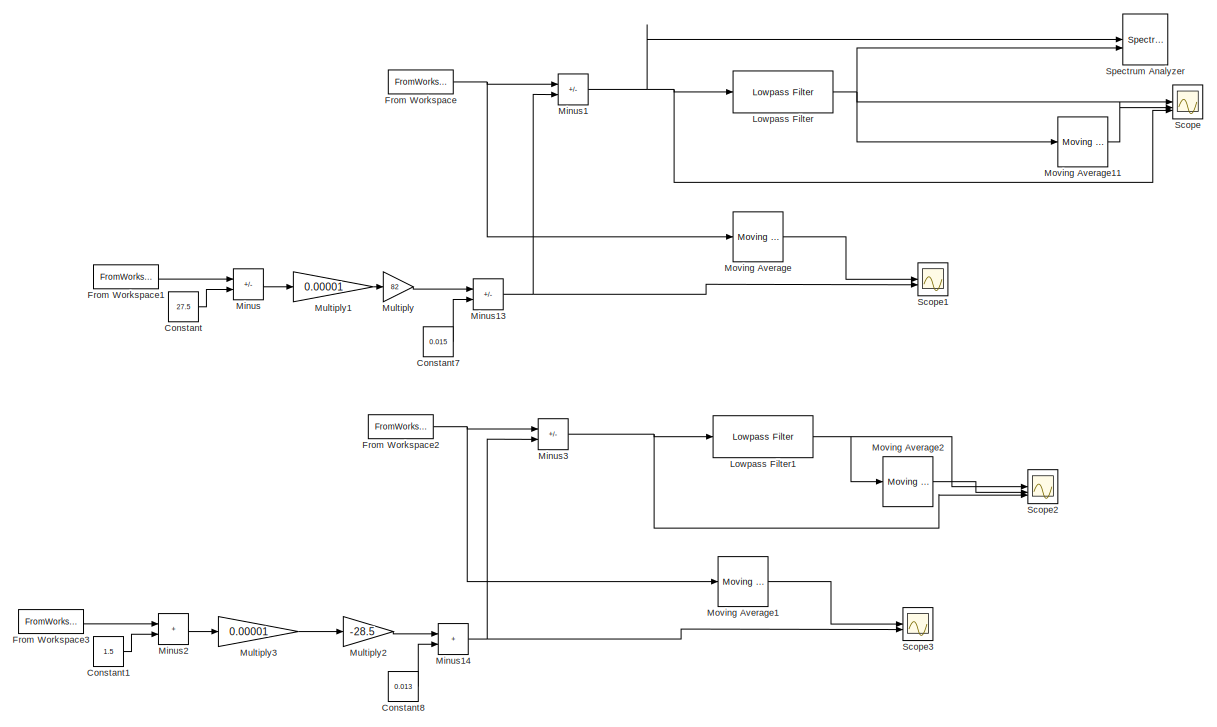
[diagram: root canvas - part 1/3, top left region]
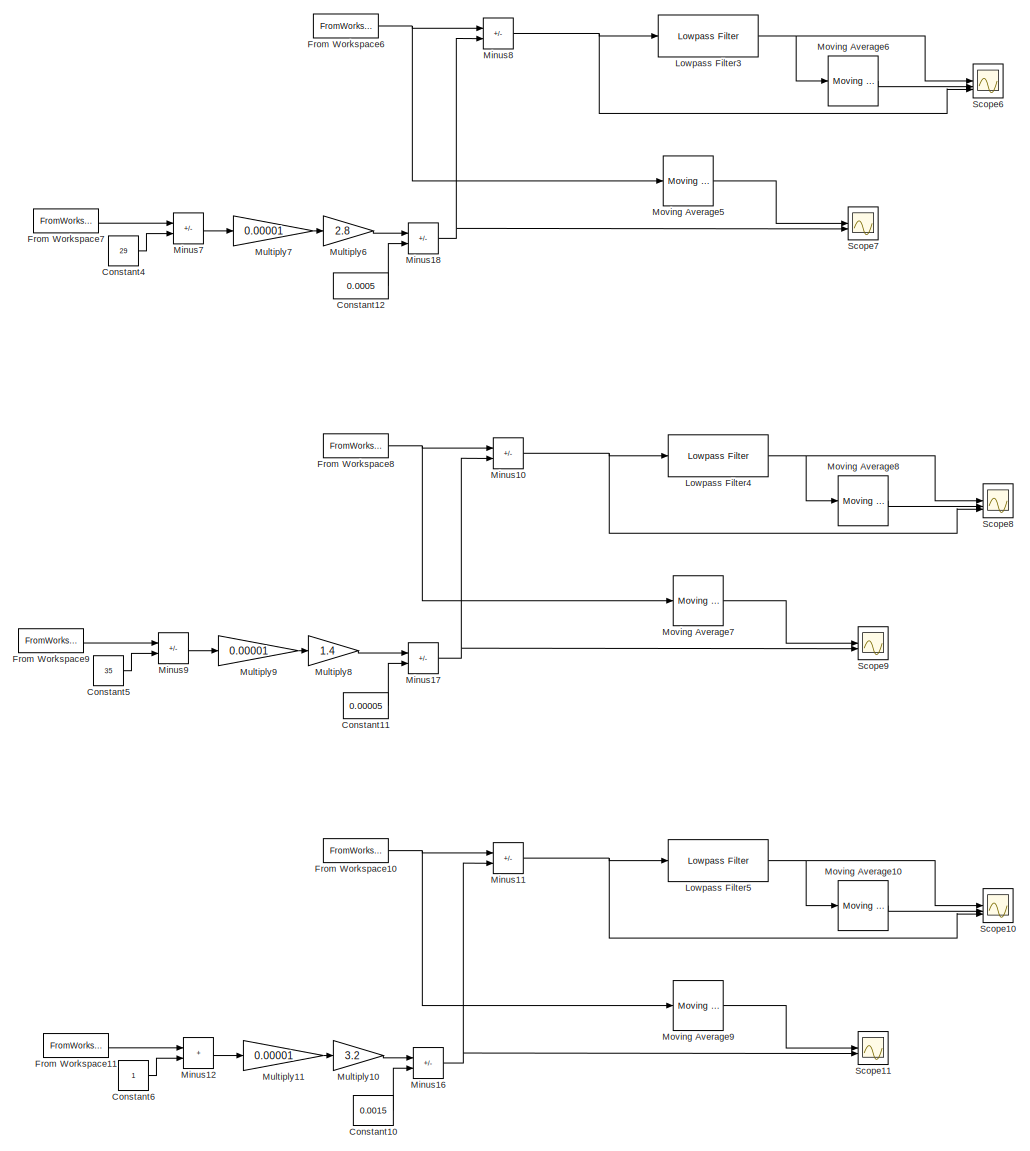
[diagram: root canvas - part 2/3, right side, full height]
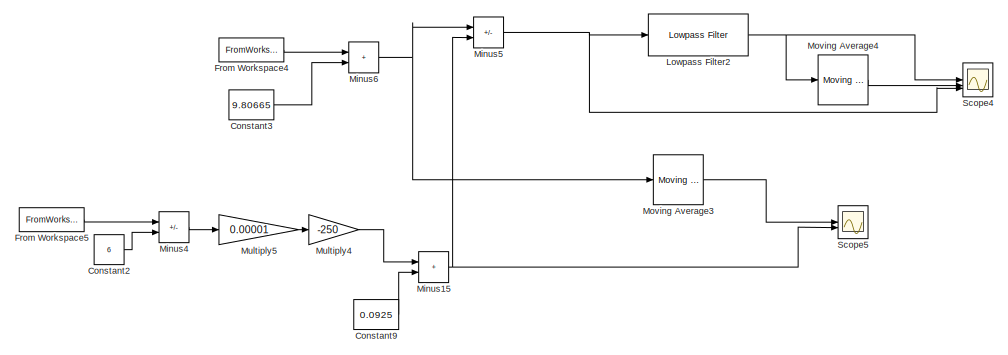
[diagram: root canvas - part 3/3, bottom left region]
MODEL slx_0a8148d8cee3
KIND model
CONFIG AbsTol = auto
CONFIG EnableMultiTasking = off
CONFIG FixedStep = auto
CONFIG MaxStep = auto
CONFIG MinStep = auto
CONFIG RelTol = 1e-3
CONFIG SampleTimeConstraint = Unconstrained
CONFIG SolverName = VariableStepAuto
CONFIG StartTime = 0.0
CONFIG StopTime = 60
BLOCK [Constant] Constant
  Value = 27.5
BLOCK [Constant] Constant1
  Commented = on
  Value = 1.5
BLOCK [Constant] Constant10
  Commented = on
  Value = 0.0015
BLOCK [Constant] Constant11
  Commented = on
  Value = 0.00005
BLOCK [Constant] Constant12
  Commented = on
  Value = 0.0005
BLOCK [Constant] Constant2
  Commented = on
  Value = 6
BLOCK [Constant] Constant3
  Commented = on
  Value = 9.80665
BLOCK [Constant] Constant4
  Commented = on
  Value = 29
BLOCK [Constant] Constant5
  Commented = on
  Value = 35
BLOCK [Constant] Constant6
  Commented = on
BLOCK [Constant] Constant7
  Value = 0.015
BLOCK [Constant] Constant8
  Commented = on
  Value = 0.013
BLOCK [Constant] Constant9
  Commented = on
  Value = 0.0925
BLOCK [FromWorkspace] From Workspace
  SampleTime = 0.01
  VariableName = [Time data.Accelerometer_X]
BLOCK [FromWorkspace] From Workspace1
  SampleTime = 0.01
  VariableName = [Time data.Temperature]
BLOCK [FromWorkspace] From Workspace10
  Commented = on
  SampleTime = 0.01
  VariableName = [Time data.Gyroscope_Z]
BLOCK [FromWorkspace] From Workspace11
  Commented = on
  SampleTime = 0.01
  VariableName = [Time data.Temperature]
BLOCK [FromWorkspace] From Workspace2
  Commented = on
  SampleTime = 0.01
  VariableName = [Time data.Accelerometer_Y]
BLOCK [FromWorkspace] From Workspace3
  Commented = on
  SampleTime = 0.01
  VariableName = [Time data.Temperature]
BLOCK [FromWorkspace] From Workspace4
  Commented = on
  SampleTime = 0.01
  VariableName = [Time data.Accelerometer_Z]
BLOCK [FromWorkspace] From Workspace5
  Commented = on
  SampleTime = 0.01
  VariableName = [Time data.Temperature]
BLOCK [FromWorkspace] From Workspace6
  Commented = on
  SampleTime = 0.01
  VariableName = [Time data.Gyroscope_X]
BLOCK [FromWorkspace] From Workspace7
  Commented = on
  SampleTime = 0.01
  VariableName = [Time data.Temperature]
BLOCK [FromWorkspace] From Workspace8
  Commented = on
  SampleTime = 0.01
  VariableName = [Time data.Gyroscope_Y]
BLOCK [FromWorkspace] From Workspace9
  Commented = on
  SampleTime = 0.01
  VariableName = [Time data.Temperature]
BLOCK [Reference] Lowpass Filter  REF=dspfdesign/Lowpass Filter
  SourceBlock = dspfdesign/Lowpass Filter
  SourceType = dsp.simulink.LowpassFilter
BLOCK [Reference] Lowpass Filter1  REF=dspfdesign/Lowpass Filter
  Commented = on
  SourceBlock = dspfdesign/Lowpass Filter
  SourceType = dsp.simulink.LowpassFilter
BLOCK [Reference] Lowpass Filter2  REF=dspfdesign/Lowpass Filter
  Commented = on
  SourceBlock = dspfdesign/Lowpass Filter
  SourceType = dsp.simulink.LowpassFilter
BLOCK [Reference] Lowpass Filter3  REF=dspfdesign/Lowpass Filter
  Commented = on
  SourceBlock = dspfdesign/Lowpass Filter
  SourceType = dsp.simulink.LowpassFilter
BLOCK [Reference] Lowpass Filter4  REF=dspfdesign/Lowpass Filter
  Commented = on
  SourceBlock = dspfdesign/Lowpass Filter
  SourceType = dsp.simulink.LowpassFilter
BLOCK [Reference] Lowpass Filter5  REF=dspfdesign/Lowpass Filter
  Commented = on
  SourceBlock = dspfdesign/Lowpass Filter
  SourceType = dsp.simulink.LowpassFilter
BLOCK [Sum] Minus
  IconShape = rectangular
  Inputs = +-
BLOCK [Sum] Minus1
  IconShape = rectangular
  Inputs = +-
BLOCK [Sum] Minus10
  Commented = on
  IconShape = rectangular
  Inputs = +-
BLOCK [Sum] Minus11
  Commented = on
  IconShape = rectangular
  Inputs = +-
BLOCK [Sum] Minus12
  Commented = on
  IconShape = rectangular
BLOCK [Sum] Minus13
  IconShape = rectangular
  Inputs = +-
BLOCK [Sum] Minus14
  Commented = on
  IconShape = rectangular
BLOCK [Sum] Minus15
  Commented = on
  IconShape = rectangular
BLOCK [Sum] Minus16
  Commented = on
  IconShape = rectangular
  Inputs = +-
BLOCK [Sum] Minus17
  Commented = on
  IconShape = rectangular
  Inputs = +-
BLOCK [Sum] Minus18
  Commented = on
  IconShape = rectangular
  Inputs = +-
BLOCK [Sum] Minus2
  Commented = on
  IconShape = rectangular
BLOCK [Sum] Minus3
  Commented = on
  IconShape = rectangular
  Inputs = +-
BLOCK [Sum] Minus4
  Commented = on
  IconShape = rectangular
  Inputs = +-
BLOCK [Sum] Minus5
  Commented = on
  IconShape = rectangular
  Inputs = +-
BLOCK [Sum] Minus6
  Commented = on
  IconShape = rectangular
BLOCK [Sum] Minus7
  Commented = on
  IconShape = rectangular
  Inputs = +-
BLOCK [Sum] Minus8
  Commented = on
  IconShape = rectangular
  Inputs = +-
BLOCK [Sum] Minus9
  Commented = on
  IconShape = rectangular
  Inputs = +-
BLOCK [Reference] Moving Average  REF=dspstat3/Moving
Average
  SourceBlock = dspstat3/Moving\nAverage
  SourceType = dsp.simulink.MovingAverage
BLOCK [Reference] Moving Average1  REF=dspstat3/Moving
Average
  Commented = on
  SourceBlock = dspstat3/Moving\nAverage
  SourceType = dsp.simulink.MovingAverage
BLOCK [Reference] Moving Average10  REF=dspstat3/Moving
Average
  Commented = on
  SourceBlock = dspstat3/Moving\nAverage
  SourceType = dsp.simulink.MovingAverage
BLOCK [Reference] Moving Average11  REF=dspstat3/Moving
Average
  SourceBlock = dspstat3/Moving\nAverage
  SourceType = dsp.simulink.MovingAverage
BLOCK [Reference] Moving Average2  REF=dspstat3/Moving
Average
  Commented = on
  SourceBlock = dspstat3/Moving\nAverage
  SourceType = dsp.simulink.MovingAverage
BLOCK [Reference] Moving Average3  REF=dspstat3/Moving
Average
  Commented = on
  SourceBlock = dspstat3/Moving\nAverage
  SourceType = dsp.simulink.MovingAverage
BLOCK [Reference] Moving Average4  REF=dspstat3/Moving
Average
  Commented = on
  SourceBlock = dspstat3/Moving\nAverage
  SourceType = dsp.simulink.MovingAverage
BLOCK [Reference] Moving Average5  REF=dspstat3/Moving
Average
  Commented = on
  SourceBlock = dspstat3/Moving\nAverage
  SourceType = dsp.simulink.MovingAverage
BLOCK [Reference] Moving Average6  REF=dspstat3/Moving
Average
  Commented = on
  SourceBlock = dspstat3/Moving\nAverage
  SourceType = dsp.simulink.MovingAverage
BLOCK [Reference] Moving Average7  REF=dspstat3/Moving
Average
  Commented = on
  SourceBlock = dspstat3/Moving\nAverage
  SourceType = dsp.simulink.MovingAverage
BLOCK [Reference] Moving Average8  REF=dspstat3/Moving
Average
  Commented = on
  SourceBlock = dspstat3/Moving\nAverage
  SourceType = dsp.simulink.MovingAverage
BLOCK [Reference] Moving Average9  REF=dspstat3/Moving
Average
  Commented = on
  SourceBlock = dspstat3/Moving\nAverage
  SourceType = dsp.simulink.MovingAverage
BLOCK [Gain] Multiply
  Gain = 82
BLOCK [Gain] Multiply1
  Gain = 0.00001
BLOCK [Gain] Multiply10
  Commented = on
  Gain = 3.2
BLOCK [Gain] Multiply11
  Commented = on
  Gain = 0.00001
BLOCK [Gain] Multiply2
  Commented = on
  Gain = -28.5
BLOCK [Gain] Multiply3
  Commented = on
  Gain = 0.00001
BLOCK [Gain] Multiply4
  Commented = on
  Gain = -250
BLOCK [Gain] Multiply5
  Commented = on
  Gain = 0.00001
BLOCK [Gain] Multiply6
  Commented = on
  Gain = 2.8
BLOCK [Gain] Multiply7
  Commented = on
  Gain = 0.00001
BLOCK [Gain] Multiply8
  Commented = on
  Gain = 1.4
BLOCK [Gain] Multiply9
  Commented = on
  Gain = 0.00001
BLOCK [Scope] Scope
  Floating = off
  NumInputPorts = 3
  ScopeSpecificationString = Simulink.scopes.TimeScopeBlockCfg('CurrentConfiguration', extmgr.ConfigurationSet(extmgr.Configuration('Core','General UI',true),extmgr.Configuration('Core','Source UI',true),extmgr.Configuration('Sources','WiredSimulink',true),extmgr.Configuration('Visuals','Time Domain',true,'SerializedDisplays',{struct('MinYLimReal','-0.02438','MaxYLimReal','0.02283','YLabelReal','','MinYLimMag','0.00000','MaxY...<+1618ch>
BLOCK [Scope] Scope1
  Floating = off
  NumInputPorts = 2
  ScopeSpecificationString = Simulink.scopes.TimeScopeBlockCfg('CurrentConfiguration', extmgr.ConfigurationSet(extmgr.Configuration('Core','General UI',true),extmgr.Configuration('Core','Source UI',true),extmgr.Configuration('Sources','WiredSimulink',true,'DataLoggingVariableName','ScopeData1'),extmgr.Configuration('Visuals','Time Domain',true,'SerializedDisplays',{struct('MinYLimReal','-0.03457','MaxYLimReal','0.02001','YLab...<+1703ch>
BLOCK [Scope] Scope10
  Commented = on
  Floating = off
  NumInputPorts = 3
  ScopeSpecificationString = Simulink.scopes.TimeScopeBlockCfg('CurrentConfiguration', extmgr.ConfigurationSet(extmgr.Configuration('Core','General UI',true),extmgr.Configuration('Core','Source UI',true),extmgr.Configuration('Sources','WiredSimulink',true,'DataLoggingVariableName','ScopeData10'),extmgr.Configuration('Visuals','Time Domain',true,'SerializedDisplays',{struct('MinYLimReal','-0.00124','MaxYLimReal','0.00137','YLa...<+1634ch>
BLOCK [Scope] Scope11
  Commented = on
  Floating = off
  NumInputPorts = 2
  ScopeSpecificationString = Simulink.scopes.TimeScopeBlockCfg('CurrentConfiguration', extmgr.ConfigurationSet(extmgr.Configuration('Core','General UI',true),extmgr.Configuration('Core','Source UI',true),extmgr.Configuration('Sources','WiredSimulink',true,'DataLoggingVariableName','ScopeData11'),extmgr.Configuration('Visuals','Time Domain',true,'SerializedDisplays',{struct('MinYLimReal','-0.00102','MaxYLimReal','0.00182','YLa...<+1708ch>
BLOCK [Scope] Scope2
  Commented = on
  Floating = off
  NumInputPorts = 3
  ScopeSpecificationString = Simulink.scopes.TimeScopeBlockCfg('CurrentConfiguration', extmgr.ConfigurationSet(extmgr.Configuration('Core','General UI',true),extmgr.Configuration('Core','Source UI',true),extmgr.Configuration('Sources','WiredSimulink',true,'DataLoggingVariableName','ScopeData2'),extmgr.Configuration('Visuals','Time Domain',true,'SerializedDisplays',{struct('MinYLimReal','-0.01998','MaxYLimReal','0.02048','YLab...<+1630ch>
BLOCK [Scope] Scope3
  Commented = on
  Floating = off
  NumInputPorts = 2
  ScopeSpecificationString = Simulink.scopes.TimeScopeBlockCfg('CurrentConfiguration', extmgr.ConfigurationSet(extmgr.Configuration('Core','General UI',true),extmgr.Configuration('Core','Source UI',true),extmgr.Configuration('Sources','WiredSimulink',true,'DataLoggingVariableName','ScopeData3'),extmgr.Configuration('Visuals','Time Domain',true,'SerializedDisplays',{struct('MinYLimReal','-0.02572','MaxYLimReal','0.00335','YLab...<+2038ch>
BLOCK [Scope] Scope4
  Commented = on
  Floating = off
  NumInputPorts = 3
  ScopeSpecificationString = Simulink.scopes.TimeScopeBlockCfg('CurrentConfiguration', extmgr.ConfigurationSet(extmgr.Configuration('Core','General UI',true),extmgr.Configuration('Core','Source UI',true),extmgr.Configuration('Sources','WiredSimulink',true,'DataLoggingVariableName','ScopeData4'),extmgr.Configuration('Visuals','Time Domain',true,'SerializedDisplays',{struct('MinYLimReal','-0.02177','MaxYLimReal','0.02658','YLab...<+1631ch>
BLOCK [Scope] Scope5
  Commented = on
  Floating = off
  NumInputPorts = 2
  ScopeSpecificationString = Simulink.scopes.TimeScopeBlockCfg('CurrentConfiguration', extmgr.ConfigurationSet(extmgr.Configuration('Core','General UI',true),extmgr.Configuration('Core','Source UI',true),extmgr.Configuration('Sources','WiredSimulink',true,'DataLoggingVariableName','ScopeData5'),extmgr.Configuration('Visuals','Time Domain',true,'SerializedDisplays',{struct('MinYLimReal','-0.13254','MaxYLimReal','0.0147','YLabe...<+2036ch>
BLOCK [Scope] Scope6
  Commented = on
  Floating = off
  NumInputPorts = 3
  ScopeSpecificationString = Simulink.scopes.TimeScopeBlockCfg('CurrentConfiguration', extmgr.ConfigurationSet(extmgr.Configuration('Core','General UI',true),extmgr.Configuration('Core','Source UI',true),extmgr.Configuration('Sources','WiredSimulink',true,'DataLoggingVariableName','ScopeData6'),extmgr.Configuration('Visuals','Time Domain',true,'SerializedDisplays',{struct('MinYLimReal','-0.0014','MaxYLimReal','0.00128','YLabe...<+1627ch>
BLOCK [Scope] Scope7
  Commented = on
  Floating = off
  NumInputPorts = 2
  ScopeSpecificationString = Simulink.scopes.TimeScopeBlockCfg('CurrentConfiguration', extmgr.ConfigurationSet(extmgr.Configuration('Core','General UI',true),extmgr.Configuration('Core','Source UI',true),extmgr.Configuration('Sources','WiredSimulink',true,'DataLoggingVariableName','ScopeData7'),extmgr.Configuration('Visuals','Time Domain',true,'SerializedDisplays',{struct('MinYLimReal','-0.00091','MaxYLimReal','0.00073','YLab...<+1708ch>
BLOCK [Scope] Scope8
  Commented = on
  Floating = off
  NumInputPorts = 3
  ScopeSpecificationString = Simulink.scopes.TimeScopeBlockCfg('CurrentConfiguration', extmgr.ConfigurationSet(extmgr.Configuration('Core','General UI',true),extmgr.Configuration('Core','Source UI',true),extmgr.Configuration('Sources','WiredSimulink',true,'DataLoggingVariableName','ScopeData8'),extmgr.Configuration('Visuals','Time Domain',true,'SerializedDisplays',{struct('MinYLimReal','-0.00163','MaxYLimReal','0.00137','YLab...<+1632ch>
BLOCK [Scope] Scope9
  Commented = on
  Floating = off
  NumInputPorts = 2
  ScopeSpecificationString = Simulink.scopes.TimeScopeBlockCfg('CurrentConfiguration', extmgr.ConfigurationSet(extmgr.Configuration('Core','General UI',true),extmgr.Configuration('Core','Source UI',true),extmgr.Configuration('Sources','WiredSimulink',true,'DataLoggingVariableName','ScopeData9'),extmgr.Configuration('Visuals','Time Domain',true,'SerializedDisplays',{struct('MinYLimReal','-0.00091','MaxYLimReal','0.00073','YLab...<+1706ch>
BLOCK [SpectrumAnalyzer] Spectrum Analyzer
  GraphicalSettings = {"GraphicalSettings":{"Style":{"BackgroundColor":[0.12941176470588237,0.12941176470588237,0.12941176470588237],"AxesColor":[0.07058823529411765,0.07058823529411765,0.07058823529411765],"LabelsColor":[0.8509803921568627,0.8509803921568627,0.8509803921568627],"PreserveColors":false,"Visible":[true,true],"LineStyle":["-","-"],"LineWidth":[1.5,1.5],"BarWidth":[0.9,0.9],"LineColor":[[1,0.90980392156862...<+1087ch>
  NumInputPorts = 2
  ScopeFrameLocation = window
  Span = 100
  StartFrequency = -50
  StopFrequency = 50
  WasSavedAsWebScope = on
  WindowInvariantSamplesPerUpdate = on
  WindowPosition = [-1733.000000,170.000000,1527.000000,785.000000,]
  YLimits = [-73.15886504,-26.38842028]
LINE Constant10:1 -> Minus16:2
LINE Constant11:1 -> Minus17:2
LINE Constant12:1 -> Minus18:2
LINE Constant1:1 -> Minus2:2
LINE Constant2:1 -> Minus4:2
LINE Constant3:1 -> Minus6:2
LINE Constant4:1 -> Minus7:2
LINE Constant5:1 -> Minus9:2
LINE Constant6:1 -> Minus12:2
LINE Constant7:1 -> Minus13:2
LINE Constant8:1 -> Minus14:2
LINE Constant9:1 -> Minus15:2
LINE Constant:1 -> Minus:2
NET From Workspace10:1 -> Minus11:1, Moving Average9:1
LINE From Workspace11:1 -> Minus12:1
LINE From Workspace1:1 -> Minus:1
NET From Workspace2:1 -> Minus3:1, Moving Average1:1
LINE From Workspace3:1 -> Minus2:1
LINE From Workspace4:1 -> Minus6:1
LINE From Workspace5:1 -> Minus4:1
NET From Workspace6:1 -> Minus8:1, Moving Average5:1
LINE From Workspace7:1 -> Minus7:1
NET From Workspace8:1 -> Minus10:1, Moving Average7:1
LINE From Workspace9:1 -> Minus9:1
NET From Workspace:1 -> Minus1:1, Moving Average:1
NET Lowpass Filter1:1 -> Moving Average2:1, Scope2:1
NET Lowpass Filter2:1 -> Moving Average4:1, Scope4:1
NET Lowpass Filter3:1 -> Moving Average6:1, Scope6:1
NET Lowpass Filter4:1 -> Moving Average8:1, Scope8:1
NET Lowpass Filter5:1 -> Moving Average10:1, Scope10:1
NET Lowpass Filter:1 -> Moving Average11:1, Scope:1, Spectrum Analyzer:2
NET Minus10:1 -> Lowpass Filter4:1, Scope8:3
NET Minus11:1 -> Lowpass Filter5:1, Scope10:3
LINE Minus12:1 -> Multiply11:1
NET Minus13:1 -> Minus1:2, Scope1:2
NET Minus14:1 -> Minus3:2, Scope3:2
NET Minus15:1 -> Minus5:2, Scope5:2
NET Minus16:1 -> Minus11:2, Scope11:2
NET Minus17:1 -> Minus10:2, Scope9:2
NET Minus18:1 -> Minus8:2, Scope7:2
NET Minus1:1 -> Lowpass Filter:1, Scope:3, Spectrum Analyzer:1
LINE Minus2:1 -> Multiply3:1
NET Minus3:1 -> Lowpass Filter1:1, Scope2:3
LINE Minus4:1 -> Multiply5:1
NET Minus5:1 -> Lowpass Filter2:1, Scope4:3
NET Minus6:1 -> Minus5:1, Moving Average3:1
LINE Minus7:1 -> Multiply7:1
NET Minus8:1 -> Lowpass Filter3:1, Scope6:3
LINE Minus9:1 -> Multiply9:1
LINE Minus:1 -> Multiply1:1
LINE Moving Average10:1 -> Scope10:2
LINE Moving Average11:1 -> Scope:2
LINE Moving Average1:1 -> Scope3:1
LINE Moving Average2:1 -> Scope2:2
LINE Moving Average3:1 -> Scope5:1
LINE Moving Average4:1 -> Scope4:2
LINE Moving Average5:1 -> Scope7:1
LINE Moving Average6:1 -> Scope6:2
LINE Moving Average7:1 -> Scope9:1
LINE Moving Average8:1 -> Scope8:2
LINE Moving Average9:1 -> Scope11:1
LINE Moving Average:1 -> Scope1:1
LINE Multiply10:1 -> Minus16:1
LINE Multiply11:1 -> Multiply10:1
LINE Multiply1:1 -> Multiply:1
LINE Multiply2:1 -> Minus14:1
LINE Multiply3:1 -> Multiply2:1
LINE Multiply4:1 -> Minus15:1
LINE Multiply5:1 -> Multiply4:1
LINE Multiply6:1 -> Minus18:1
LINE Multiply7:1 -> Multiply6:1
LINE Multiply8:1 -> Minus17:1
LINE Multiply9:1 -> Multiply8:1
LINE Multiply:1 -> Minus13:1
note: NET lines group one-source signal fan-out (src -> all destinations, sorted); 1:1 wires keep LINE
